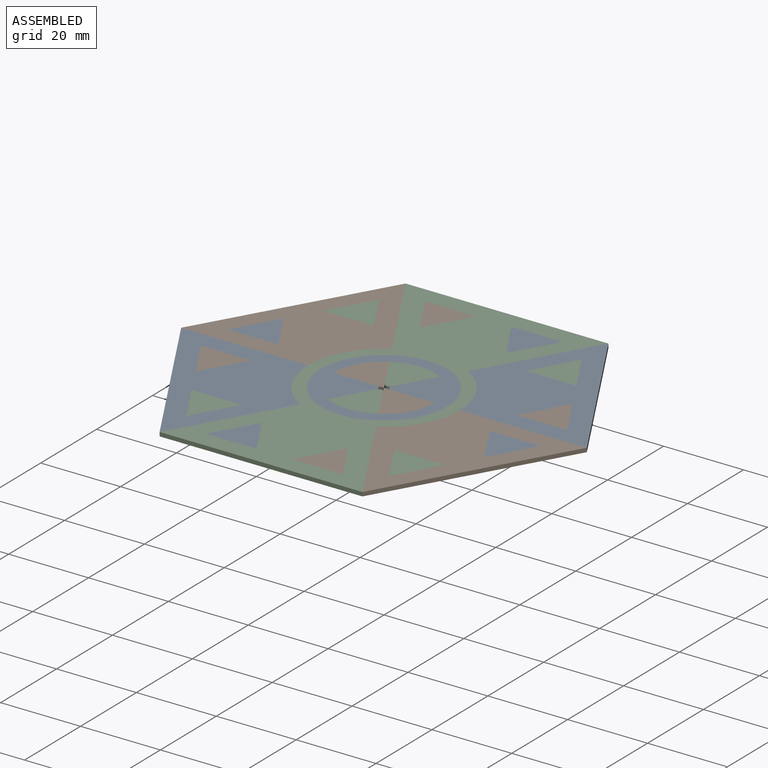
[diagram: assembled view]
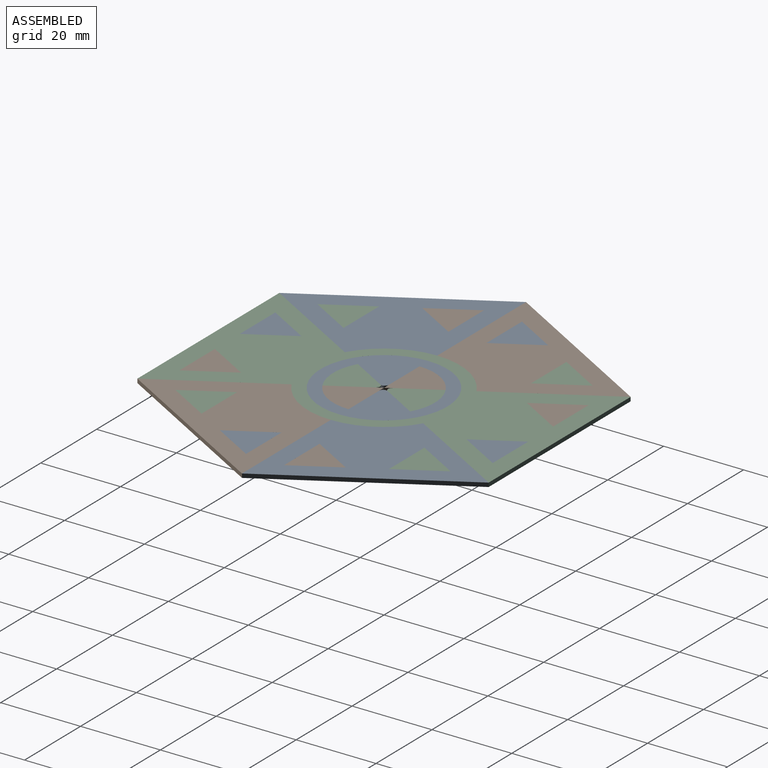
[diagram: assembled view, second angle]
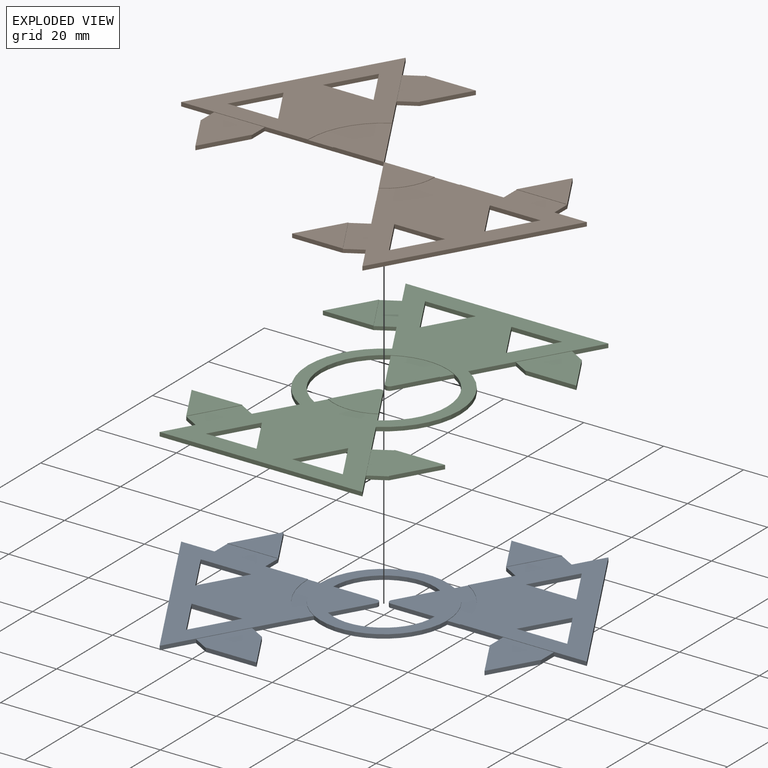
[diagram: exploded view]
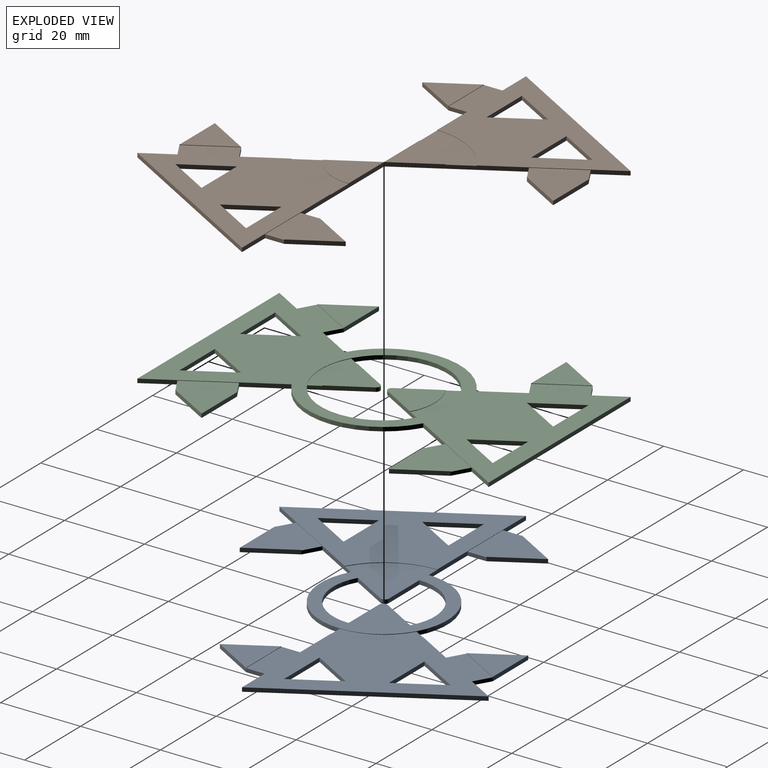
[diagram: exploded view, second angle]
ASSEMBLY  parts=3 mates=2
PART A: 63 faces, bbox 63.5x88x1 mm
  f0: plane 30.25x17.46mm, normal (0.87,-0.5,0), area 23.2mm2, adj f3,f10,f16,f23,f24,f31,f52,f61
  f1: plane 30.25x17.46mm, normal (0.87,0.5,0), area 23.2mm2, adj f5,f6,f16,f31,f41,f44,f56,f59
  f2: plane 31.75x31.75mm, normal (0,0,1), area 452.6mm2, adj f16,f17,f18,f19,f20,f32,f39,f40
  f3: plane 50.8x27.5mm, normal (0,0,1), area 787.8mm2, adj f0,f12,f13,f14,f15,f24,f25,f27
  f4: plane 12.7x11mm, normal (0,0,1), area 69.8mm2, adj f46,f48,f57
  f5: plane 50.8x27.5mm, normal (0,0,1), area 787.8mm2, adj f1,f33,f34,f35,f36,f38,f44,f47
  f6: plane 4.12x2.38mm, normal (0.5,-0.87,0), area 4.3mm2, adj f1,f31,f43,f56
  f7: plane 4.12x2.38mm, normal (0.5,-0.87,0), area 4.3mm2, adj f25,f28,f31,f54
  f8: plane 4.12x2.38mm, normal (-0.5,0.87,0), area 4.3mm2, adj f25,f26,f31,f54
  f9: plane 12.7x11mm, normal (0,0,1), area 69.8mm2, adj f42,f43,f55
  f10: plane 4.12x2.38mm, normal (-0.5,-0.87,0), area 4.3mm2, adj f0,f21,f31,f52
  f11: plane 12.7x11mm, normal (0,0,1), area 69.8mm2, adj f21,f22,f51
  f12: plane 11x6.35mm, normal (-0.87,0.5,0), area 12.7mm2, adj f3,f13,f29,f31
  f13: plane 11x6.35mm, normal (0.87,0.5,0), area 12.7mm2, adj f3,f12,f29,f31
  f14: plane 11x6.35mm, normal (-0.87,0.5,0), area 12.7mm2, adj f3,f15,f27,f31
  f15: plane 11x6.35mm, normal (0.87,0.5,0), area 12.7mm2, adj f3,f14,f27,f31
  f16: cylinder r=15.88mm len=31.75mm, axis (0,0,-1), area 69.8mm2, adj f0,f1,f2,f25,f31,f38,f60,f62
  f17: cylinder r=12.7mm len=22mm, axis (0,0,-1), area 26.6mm2, adj f2,f18,f31,f39
  f18: plane 9.5x5.48mm, normal (-0.87,-0.5,0), area 11mm2, adj f2,f17,f31,f32
  f19: plane 9.5x5.48mm, normal (0.87,-0.5,0), area 11mm2, adj f2,f20,f31,f32
  f20: cylinder r=12.7mm len=22mm, axis (0,0,-1), area 26.6mm2, adj f2,f19,f31,f40
  f21: plane 12.7x1mm, normal (0,-1,0), area 12.7mm2, adj f10,f11,f22,f31,f51
  f22: plane 11x6.35mm, normal (0.87,0.5,0), area 12.7mm2, adj f11,f21,f23,f31,f51
  f23: plane 4.12x2.38mm, normal (0.5,0.87,0), area 4.3mm2, adj f0,f22,f31,f52
  f24: plane 50.8x1mm, normal (0,1,0), area 50.8mm2, adj f0,f3,f25,f31
  f25: plane 30.25x17.46mm, normal (-0.87,-0.5,0), area 23.2mm2, adj f3,f7,f8,f16,f24,f31,f54,f61
  f26: plane 11x6.35mm, normal (-0.87,0.5,0), area 12.7mm2, adj f8,f28,f30,f31,f53
  f27: plane 12.7x1mm, normal (0,-1,0), area 12.7mm2, adj f3,f14,f15,f31
  f28: plane 12.7x1mm, normal (0,-1,0), area 12.7mm2, adj f7,f26,f30,f31,f53
  f29: plane 12.7x1mm, normal (0,-1,0), area 12.7mm2, adj f3,f12,f13,f31
  f30: plane 12.7x11mm, normal (0,0,1), area 69.8mm2, adj f26,f28,f53
  f31: plane 87.99x63.5mm, normal (0,0,-1), area 2665.5mm2, adj f0,f1,f6,f7,f8,f10,f12,f13
  f32: cylinder r=1mm len=1.73mm, axis (0,0,1), area 2.1mm2, adj f2,f18,f19,f31
  f33: plane 11x6.35mm, normal (-0.87,-0.5,0), area 12.7mm2, adj f5,f31,f34,f49
  f34: plane 11x6.35mm, normal (0.87,-0.5,0), area 12.7mm2, adj f5,f31,f33,f49
  f35: plane 11x6.35mm, normal (-0.87,-0.5,0), area 12.7mm2, adj f5,f31,f36,f47
  f36: plane 11x6.35mm, normal (0.87,-0.5,0), area 12.7mm2, adj f5,f31,f35,f47
  f37: plane 4.12x2.38mm, normal (0.5,0.87,0), area 4.3mm2, adj f31,f38,f48,f58
  f38: plane 30.25x17.46mm, normal (-0.87,0.5,0), area 23.2mm2, adj f5,f16,f31,f37,f44,f45,f58,f59
  f39: plane 9.5x5.48mm, normal (-0.87,0.5,0), area 11mm2, adj f2,f17,f31,f50
  f40: plane 9.5x5.48mm, normal (0.87,0.5,0), area 11mm2, adj f2,f20,f31,f50
  f41: plane 4.12x2.38mm, normal (-0.5,0.87,0), area 4.3mm2, adj f1,f31,f42,f56
  f42: plane 12.7x1mm, normal (0,1,0), area 12.7mm2, adj f9,f31,f41,f43,f55
  f43: plane 11x6.35mm, normal (0.87,-0.5,0), area 12.7mm2, adj f6,f9,f31,f42,f55
  f44: plane 50.8x1mm, normal (0,-1,0), area 50.8mm2, adj f1,f5,f31,f38
  f45: plane 4.12x2.38mm, normal (-0.5,-0.87,0), area 4.3mm2, adj f31,f38,f46,f58
  f46: plane 11x6.35mm, normal (-0.87,-0.5,0), area 12.7mm2, adj f4,f31,f45,f48,f57
  f47: plane 12.7x1mm, normal (0,1,0), area 12.7mm2, adj f5,f31,f35,f36
  f48: plane 12.7x1mm, normal (0,1,0), area 12.7mm2, adj f4,f31,f37,f46,f57
  f49: plane 12.7x1mm, normal (0,1,0), area 12.7mm2, adj f5,f31,f33,f34
  f50: cylinder r=1mm len=1.73mm, axis (0,0,1), area 2.1mm2, adj f2,f31,f39,f40
  f51: plane 11x6.35mm, normal (-0.87,0.5,0), area 1.3mm2, adj f11,f21,f22,f52
  f52: plane 13.38x10.47mm, normal (0,0,1), area 60.5mm2, adj f0,f10,f23,f51
  f53: plane 11x6.35mm, normal (0.87,0.5,0), area 1.3mm2, adj f26,f28,f30,f54
  f54: plane 13.38x10.47mm, normal (0,0,1), area 60.5mm2, adj f7,f8,f25,f53
  f55: plane 11x6.35mm, normal (-0.87,-0.5,0), area 1.3mm2, adj f9,f42,f43,f56
  f56: plane 13.38x10.47mm, normal (0,0,1), area 60.5mm2, adj f1,f6,f41,f55
  f57: plane 11x6.35mm, normal (0.87,-0.5,0), area 1.3mm2, adj f4,f46,f48,f58
  f58: plane 13.38x10.47mm, normal (0,0,1), area 60.5mm2, adj f37,f38,f45,f57
  f59: cylinder r=19.05mm len=19.05mm, axis (0,0,1), area 2mm2, adj f1,f5,f38,f60
  f60: plane 19.05x5.3mm, normal (0,0,1), area 58.1mm2, adj f1,f16,f38,f59
  f61: cylinder r=19.05mm len=19.05mm, axis (0,0,1), area 2mm2, adj f0,f3,f25,f62
  f62: plane 19.05x5.3mm, normal (0,0,1), area 58.1mm2, adj f0,f16,f25,f61
PART B: 58 faces, bbox 63.5x88x1 mm
  f0: plane 25.4x12.7mm, normal (0,0,1), area 168.9mm2, adj f2,f3,f19,f27,f28,f43,f52,f55
  f1: plane 50.8x27.5mm, normal (0,0,1), area 787.8mm2, adj f2,f12,f13,f14,f15,f18,f19,f22
  f2: plane 43.95x25.38mm, normal (0.87,-0.5,0), area 38.7mm2, adj f0,f1,f9,f10,f18,f26,f43,f45
  f3: plane 43.95x25.38mm, normal (0.87,0.5,0), area 38.7mm2, adj f0,f6,f26,f34,f37,f38,f43,f49
  f4: plane 12.7x11mm, normal (0,0,1), area 69.8mm2, adj f39,f41,f50
  f5: plane 4.12x2.38mm, normal (-0.5,-0.87,0), area 4.3mm2, adj f26,f28,f39,f51
  f6: plane 50.8x27.5mm, normal (0,0,1), area 787.8mm2, adj f3,f28,f29,f30,f31,f32,f38,f40
  f7: plane 4.12x2.38mm, normal (0.5,-0.87,0), area 4.3mm2, adj f19,f23,f26,f47
  f8: plane 12.7x11mm, normal (0,0,1), area 69.8mm2, adj f35,f36,f48
  f9: plane 4.12x2.38mm, normal (-0.5,-0.87,0), area 4.3mm2, adj f2,f16,f26,f45
  f10: plane 4.12x2.38mm, normal (0.5,0.87,0), area 4.3mm2, adj f2,f17,f26,f45
  f11: plane 12.7x11mm, normal (0,0,1), area 69.8mm2, adj f16,f17,f44
  f12: plane 11x6.35mm, normal (-0.87,0.5,0), area 12.7mm2, adj f1,f13,f24,f26
  f13: plane 11x6.35mm, normal (0.87,0.5,0), area 12.7mm2, adj f1,f12,f24,f26
  f14: plane 11x6.35mm, normal (-0.87,0.5,0), area 12.7mm2, adj f1,f15,f22,f26
  f15: plane 11x6.35mm, normal (0.87,0.5,0), area 12.7mm2, adj f1,f14,f22,f26
  f16: plane 12.7x1mm, normal (0,-1,0), area 12.7mm2, adj f9,f11,f17,f26,f44
  f17: plane 11x6.35mm, normal (0.87,0.5,0), area 12.7mm2, adj f10,f11,f16,f26,f44
  f18: plane 50.8x1mm, normal (0,1,0), area 50.8mm2, adj f1,f2,f19,f26
  f19: plane 43.95x25.38mm, normal (-0.87,-0.5,0), area 38.7mm2, adj f0,f1,f7,f18,f20,f26,f27,f47
  f20: plane 4.12x2.38mm, normal (-0.5,0.87,0), area 4.3mm2, adj f19,f21,f26,f47
  f21: plane 11x6.35mm, normal (-0.87,0.5,0), area 12.7mm2, adj f20,f23,f25,f26,f46
  f22: plane 12.7x1mm, normal (0,-1,0), area 12.7mm2, adj f1,f14,f15,f26
  f23: plane 12.7x1mm, normal (0,-1,0), area 12.7mm2, adj f7,f21,f25,f26,f46
  f24: plane 12.7x1mm, normal (0,-1,0), area 12.7mm2, adj f1,f12,f13,f26
  f25: plane 12.7x11mm, normal (0,0,1), area 69.8mm2, adj f21,f23,f46
  f26: plane 87.99x63.5mm, normal (0,0,-1), area 2476.8mm2, adj f2,f3,f5,f7,f9,f10,f12,f13
  f27: cylinder r=0.05mm len=1mm, axis (0,0,-1), area 0.1mm2, adj f0,f19,f26,f28
  f28: plane 43.95x25.38mm, normal (-0.87,0.5,0), area 38.7mm2, adj f0,f5,f6,f26,f27,f33,f38,f51
  f29: plane 11x6.35mm, normal (-0.87,-0.5,0), area 12.7mm2, adj f6,f26,f30,f42
  f30: plane 11x6.35mm, normal (0.87,-0.5,0), area 12.7mm2, adj f6,f26,f29,f42
  f31: plane 11x6.35mm, normal (-0.87,-0.5,0), area 12.7mm2, adj f6,f26,f32,f40
  f32: plane 11x6.35mm, normal (0.87,-0.5,0), area 12.7mm2, adj f6,f26,f31,f40
  f33: plane 4.12x2.38mm, normal (0.5,0.87,0), area 4.3mm2, adj f26,f28,f41,f51
  f34: plane 4.12x2.38mm, normal (-0.5,0.87,0), area 4.3mm2, adj f3,f26,f35,f49
  f35: plane 12.7x1mm, normal (0,1,0), area 12.7mm2, adj f8,f26,f34,f36,f48
  f36: plane 11x6.35mm, normal (0.87,-0.5,0), area 12.7mm2, adj f8,f26,f35,f37,f48
  f37: plane 4.12x2.38mm, normal (0.5,-0.87,0), area 4.3mm2, adj f3,f26,f36,f49
  f38: plane 50.8x1mm, normal (0,-1,0), area 50.8mm2, adj f3,f6,f26,f28
  f39: plane 11x6.35mm, normal (-0.87,-0.5,0), area 12.7mm2, adj f4,f5,f26,f41,f50
  f40: plane 12.7x1mm, normal (0,1,0), area 12.7mm2, adj f6,f26,f31,f32
  f41: plane 12.7x1mm, normal (0,1,0), area 12.7mm2, adj f4,f26,f33,f39,f50
  f42: plane 12.7x1mm, normal (0,1,0), area 12.7mm2, adj f6,f26,f29,f30
  f43: cylinder r=0.05mm len=1mm, axis (0,0,-1), area 0.1mm2, adj f0,f2,f3,f26
  f44: plane 11x6.35mm, normal (-0.87,0.5,0), area 1.3mm2, adj f11,f16,f17,f45
  f45: plane 13.38x10.47mm, normal (0,0,1), area 60.5mm2, adj f2,f9,f10,f44
  f46: plane 11x6.35mm, normal (0.87,0.5,0), area 1.3mm2, adj f21,f23,f25,f47
  f47: plane 13.38x10.47mm, normal (0,0,1), area 60.5mm2, adj f7,f19,f20,f46
  f48: plane 11x6.35mm, normal (-0.87,-0.5,0), area 1.3mm2, adj f8,f35,f36,f49
  f49: plane 13.38x10.47mm, normal (0,0,1), area 60.5mm2, adj f3,f34,f37,f48
  f50: plane 11x6.35mm, normal (0.87,-0.5,0), area 1.3mm2, adj f4,f39,f41,f51
  f51: plane 13.38x10.47mm, normal (0,0,1), area 60.5mm2, adj f5,f28,f33,f50
  f52: cylinder r=12.7mm len=12.7mm, axis (0,0,1), area 1.3mm2, adj f0,f3,f28,f54
  f53: cylinder r=19.05mm len=19.05mm, axis (0,0,1), area 2mm2, adj f3,f6,f28,f54
  f54: plane 19.05x8.05mm, normal (0,0,1), area 105.6mm2, adj f3,f28,f52,f53
  f55: cylinder r=12.7mm len=12.7mm, axis (0,0,1), area 1.3mm2, adj f0,f2,f19,f57
  f56: cylinder r=19.05mm len=19.05mm, axis (0,0,1), area 2mm2, adj f1,f2,f19,f57
  f57: plane 19.05x8.05mm, normal (0,0,1), area 105.6mm2, adj f2,f19,f55,f56
PART C: 63 faces, bbox 63.5x88x1 mm
  f0: plane 12.25x7.07mm, normal (-0.87,-0.5,0), area 13.8mm2, adj f2,f25,f30,f31,f61,f62
  f1: plane 12.25x7.07mm, normal (0.87,-0.5,0), area 13.8mm2, adj f2,f25,f30,f31,f61,f62
  f2: plane 12.7x11.7mm, normal (0,0,1), area 83.8mm2, adj f0,f1,f31,f61
  f3: plane 12.7x11.7mm, normal (0,0,1), area 83.8mm2, adj f46,f47,f50,f59
  f4: plane 12.7x11mm, normal (0,0,1), area 69.8mm2, adj f43,f44,f57
  f5: plane 87.99x50.8mm, normal (0,0,1), area 1923.9mm2, adj f12,f13,f14,f15,f19,f20,f23,f24
  f6: plane 4.12x2.38mm, normal (0.5,-0.87,0), area 4.3mm2, adj f30,f36,f39,f56
  f7: plane 4.12x2.38mm, normal (-0.5,0.87,0), area 4.3mm2, adj f21,f23,f30,f54
  f8: plane 4.12x2.38mm, normal (0.5,-0.87,0), area 4.3mm2, adj f22,f23,f30,f54
  f9: plane 12.7x11mm, normal (0,0,1), area 69.8mm2, adj f38,f39,f55
  f10: plane 4.12x2.38mm, normal (-0.5,-0.87,0), area 4.3mm2, adj f16,f19,f30,f52
  f11: plane 12.7x11mm, normal (0,0,1), area 69.8mm2, adj f16,f17,f51
  f12: plane 11x6.35mm, normal (0.87,0.5,0), area 12.7mm2, adj f5,f13,f28,f30
  f13: plane 12.7x1mm, normal (0,-1,0), area 12.7mm2, adj f5,f12,f28,f30
  f14: plane 11x6.35mm, normal (-0.87,0.5,0), area 12.7mm2, adj f5,f15,f26,f30
  f15: plane 11x6.35mm, normal (0.87,0.5,0), area 12.7mm2, adj f5,f14,f26,f30
  f16: plane 12.7x1mm, normal (0,-1,0), area 12.7mm2, adj f10,f11,f17,f30,f51
  f17: plane 11x6.35mm, normal (0.87,0.5,0), area 12.7mm2, adj f11,f16,f18,f30,f51
  f18: plane 4.12x2.38mm, normal (0.5,0.87,0), area 4.3mm2, adj f17,f19,f30,f52
  f19: plane 27.5x15.88mm, normal (0.87,-0.5,0), area 20.3mm2, adj f5,f10,f18,f20,f27,f30,f52
  f20: plane 50.8x1mm, normal (0,1,0), area 50.8mm2, adj f5,f19,f23,f30
  f21: plane 11x6.35mm, normal (-0.87,0.5,0), area 12.7mm2, adj f7,f22,f29,f30,f53
  f22: plane 12.7x1mm, normal (0,-1,0), area 12.7mm2, adj f8,f21,f29,f30,f53
  f23: plane 27.5x15.88mm, normal (-0.87,-0.5,0), area 20.3mm2, adj f5,f7,f8,f20,f24,f30,f54
  f24: cylinder r=19.05mm len=33mm, axis (0,0,-1), area 39.9mm2, adj f5,f23,f30,f41
  f25: cylinder r=15.88mm len=31.75mm, axis (0,0,-1), area 69.8mm2, adj f0,f1,f5,f30,f46,f47,f60,f62
  f26: plane 12.7x1mm, normal (0,-1,0), area 12.7mm2, adj f5,f14,f15,f30
  f27: cylinder r=19.05mm len=33mm, axis (0,0,-1), area 39.9mm2, adj f5,f19,f30,f36
  f28: plane 11x6.35mm, normal (-0.87,0.5,0), area 12.7mm2, adj f5,f12,f13,f30
  f29: plane 12.7x11mm, normal (0,0,1), area 69.8mm2, adj f21,f22,f53
  f30: plane 87.99x63.5mm, normal (0,0,-1), area 2707.7mm2, adj f0,f1,f6,f7,f8,f10,f12,f13
  f31: cylinder r=1mm len=1.73mm, axis (0,0,1), area 2.1mm2, adj f0,f1,f2,f30
  f32: plane 11x6.35mm, normal (0.87,-0.5,0), area 12.7mm2, adj f5,f30,f33,f49
  f33: plane 12.7x1mm, normal (0,1,0), area 12.7mm2, adj f5,f30,f32,f49
  f34: plane 11x6.35mm, normal (-0.87,-0.5,0), area 12.7mm2, adj f5,f30,f35,f48
  f35: plane 11x6.35mm, normal (0.87,-0.5,0), area 12.7mm2, adj f5,f30,f34,f48
  f36: plane 27.5x15.88mm, normal (0.87,0.5,0), area 20.3mm2, adj f5,f6,f27,f30,f37,f40,f56
  f37: plane 4.12x2.38mm, normal (-0.5,0.87,0), area 4.3mm2, adj f30,f36,f38,f56
  f38: plane 12.7x1mm, normal (0,1,0), area 12.7mm2, adj f9,f30,f37,f39,f55
  f39: plane 11x6.35mm, normal (0.87,-0.5,0), area 12.7mm2, adj f6,f9,f30,f38,f55
  f40: plane 50.8x1mm, normal (0,-1,0), area 50.8mm2, adj f5,f30,f36,f41
  f41: plane 27.5x15.88mm, normal (-0.87,0.5,0), area 20.3mm2, adj f5,f24,f30,f40,f42,f45,f58
  f42: plane 4.12x2.38mm, normal (-0.5,-0.87,0), area 4.3mm2, adj f30,f41,f43,f58
  f43: plane 11x6.35mm, normal (-0.87,-0.5,0), area 12.7mm2, adj f4,f30,f42,f44,f57
  f44: plane 12.7x1mm, normal (0,1,0), area 12.7mm2, adj f4,f30,f43,f45,f57
  f45: plane 4.12x2.38mm, normal (0.5,0.87,0), area 4.3mm2, adj f30,f41,f44,f58
  f46: plane 12.25x7.07mm, normal (-0.87,0.5,0), area 13.8mm2, adj f3,f25,f30,f50,f59,f60
  f47: plane 12.25x7.07mm, normal (0.87,0.5,0), area 13.8mm2, adj f3,f25,f30,f50,f59,f60
  f48: plane 12.7x1mm, normal (0,1,0), area 12.7mm2, adj f5,f30,f34,f35
  f49: plane 11x6.35mm, normal (-0.87,-0.5,0), area 12.7mm2, adj f5,f30,f32,f33
  f50: cylinder r=1mm len=1.73mm, axis (0,0,1), area 2.1mm2, adj f3,f30,f46,f47
  f51: plane 11x6.35mm, normal (-0.87,0.5,0), area 1.3mm2, adj f11,f16,f17,f52
  f52: plane 13.38x10.47mm, normal (0,0,1), area 60.5mm2, adj f10,f18,f19,f51
  f53: plane 11x6.35mm, normal (0.87,0.5,0), area 1.3mm2, adj f21,f22,f29,f54
  f54: plane 13.38x10.47mm, normal (0,0,1), area 60.5mm2, adj f7,f8,f23,f53
  f55: plane 11x6.35mm, normal (-0.87,-0.5,0), area 1.3mm2, adj f9,f38,f39,f56
  f56: plane 13.38x10.47mm, normal (0,0,1), area 60.5mm2, adj f6,f36,f37,f55
  f57: plane 11x6.35mm, normal (0.87,-0.5,0), area 1.3mm2, adj f4,f43,f44,f58
  f58: plane 13.38x10.47mm, normal (0,0,1), area 60.5mm2, adj f41,f42,f45,f57
  f59: cylinder r=12.7mm len=12.7mm, axis (0,0,1), area 1.3mm2, adj f3,f46,f47,f60
  f60: plane 15.88x4.88mm, normal (0,0,1), area 47.5mm2, adj f25,f46,f47,f59
  f61: cylinder r=12.7mm len=12.7mm, axis (0,0,1), area 1.3mm2, adj f0,f1,f2,f62
  f62: plane 15.88x4.88mm, normal (0,0,1), area 47.5mm2, adj f0,f1,f25,f61
PLACE A rot(axis=(0,0,1),120deg) t=(0,0,-26.4)mm
PLACE B rot(axis=(0,0,-1),120deg) t=(0,0,-52.8)mm
PLACE C at identity
MATE revolute C.f25 <-> A.f59  axis (0,0,1) through (0,0,1)mm
MATE revolute B.f27 <-> C.f25  axis (0,0,1) through (0,0,1)mm
